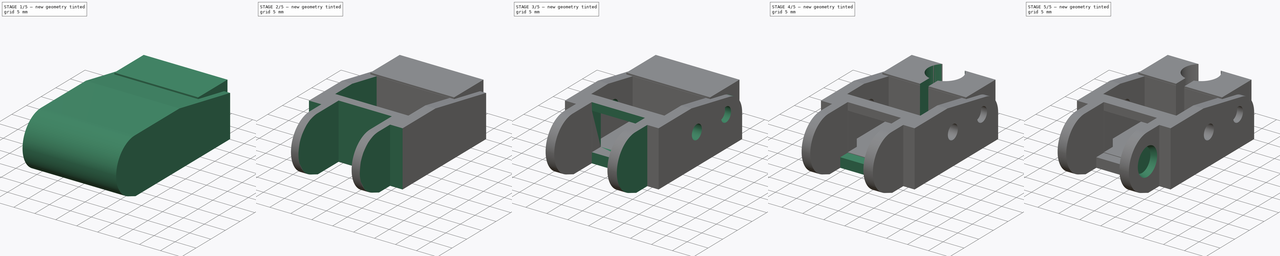
[diagram: build sequence overview — one tinted view per stage of 5, left to right]
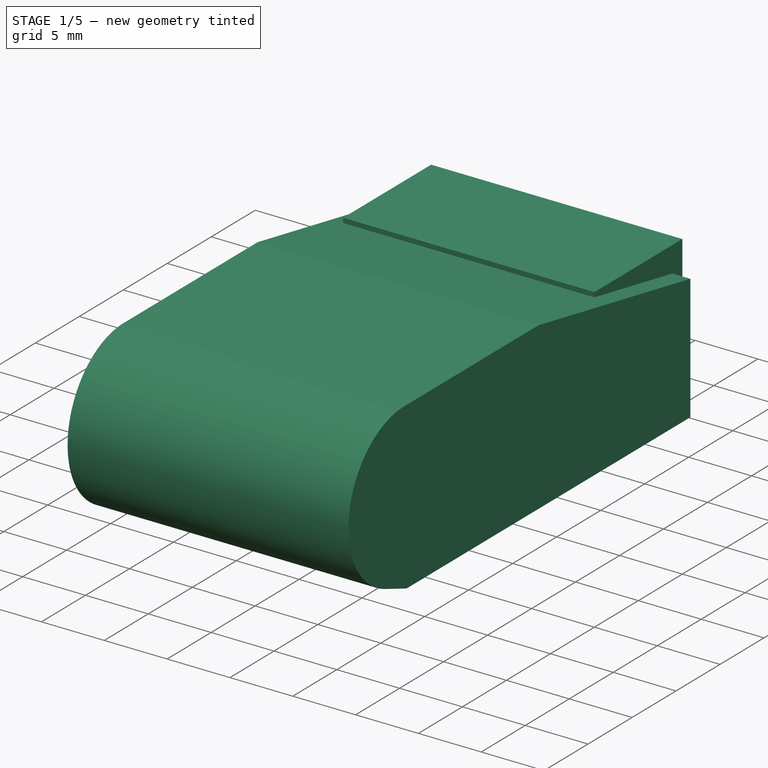
[diagram: stage 1 of 5 — iso view after this stage's code; geometry added in this stage tinted green]
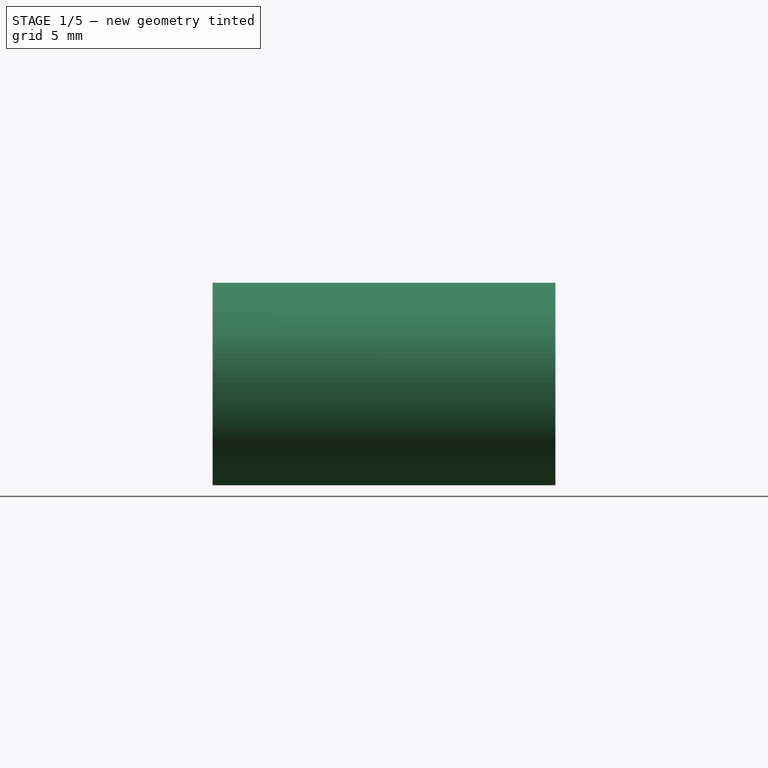
[diagram: stage 1 of 5 — front view after this stage's code; geometry added in this stage tinted green]
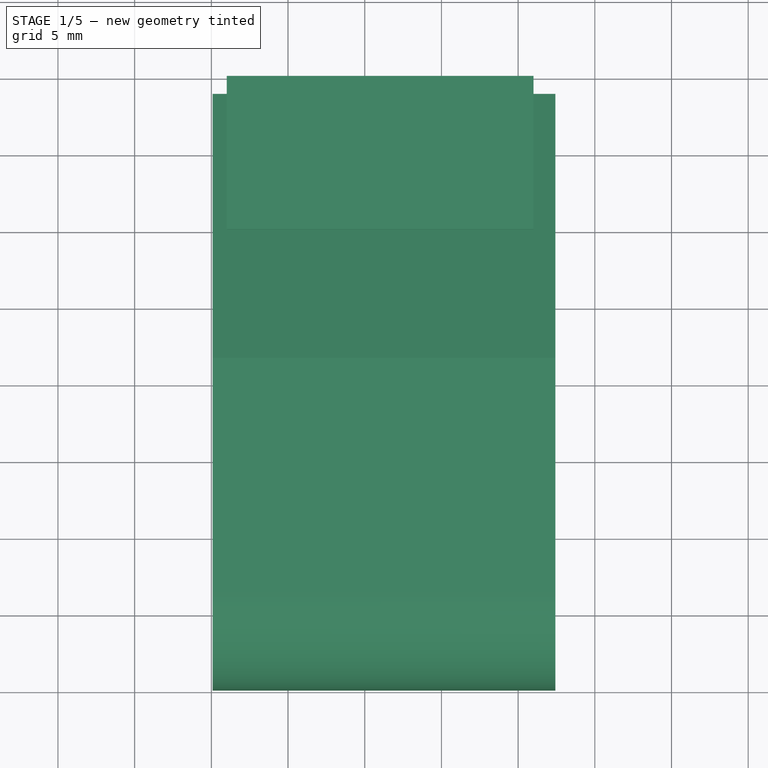
[diagram: stage 1 of 5 — top view after this stage's code; geometry added in this stage tinted green]
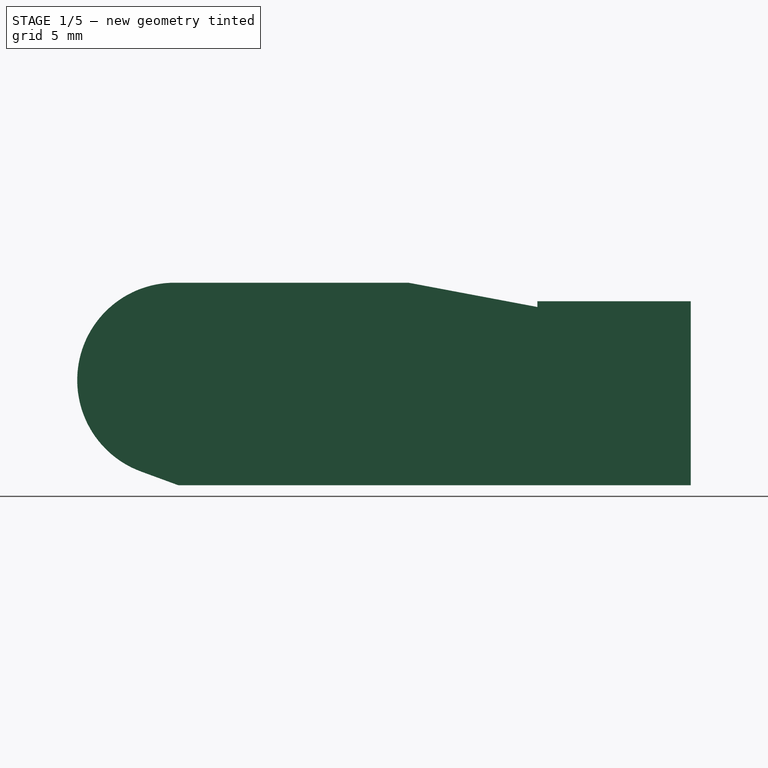
[diagram: stage 1 of 5 — right view after this stage's code; geometry added in this stage tinted green]
FCSTD DOCUMENT  (FreeCAD 0.16R6712 (Git))
Label: endpiece
License: All rights reserved
LicenseURL: http://en.wikipedia.org/wiki/All_rights_reserved
objects: Sketcher::SketchObject×10, PartDesign::Pocket×6, PartDesign::Pad×3, Part::Cone×2, Part::Cut×2, Part::Feature×1, PartDesign::Fillet×1, Part::Fuse×1
note: 35 computed .brp shape members not serialized (recipe doc carries the construction recipe); baked Part::Feature solids carry a one-line shape summary decoded from their .brp

FEATURE [Part::Feature] endpiece001
  shape: bbox 22.73 x 40.31 x 13.58 mm, 1610 faces, 0 solids (baked)
FEATURE [Sketcher::SketchObject] Sketch
  Placement = pos=(22.432,0,0) rot=(0.57735,0.57735,0.57735;2.0944rad)
  Support = -> endpiece001 [Face181]
  sketch-geometry (6):
    g0: ArcOfCircle CenterX=6.35 CenterY=6.858 CenterZ=0 NormalX=0 NormalY=0 NormalZ=1 Radius=6.35 StartAngle=1.5708 EndAngle=4.36042
    g1: LineSegment StartX=4.16084 StartY=0.89729 StartZ=0 EndX=6.604 EndY=0 EndZ=0
    g2: LineSegment StartX=6.604 StartY=0 StartZ=0 EndX=38.862 EndY=0 EndZ=0
    g3: LineSegment StartX=38.862 StartY=0 StartZ=0 EndX=38.862 EndY=9.95494 EndZ=0
    g4: LineSegment StartX=38.862 StartY=9.95494 StartZ=0 EndX=21.59 EndY=13.208 EndZ=0
    g5: LineSegment StartX=21.59 StartY=13.208 StartZ=0 EndX=6.35 EndY=13.208 EndZ=0
  constraints (20):
    c: PointOnObject(g1,g-1)
    c: Coincident(g1,g2)
    c: PointOnObject(g2,g-1)
    c: Coincident(g2,g3)
    c: Vertical(g3)
    c: Coincident(g3,g4)
    c: Coincident(g4,g5)
    c: Horizontal(g5)
    c: Coincident(g0,g5)
    c: Coincident(g0,g1)
    c: Coincident(g0,g5)
    c: Tangent(g5,g0)
    c: Tangent(g0,g1)
    c: DistanceY(g1,g0) = 13.208
    c: DistanceY(g-1,g0) = 6.858
    c: DistanceX(g-1,g2) = 38.862
    c: DistanceX(g-1,g1) = 6.604
    c: DistanceX(g-1,g0) = 6.35
    c: DistanceX(g0,g4) = 15.24
    c: Angle(g4,g2) = 0.186162
FEATURE [PartDesign::Pad] Pad
  Length = 22.352
  Length2 = 100
  Reversed = true
  Sketch = -> Sketch
  Type = 0
FEATURE [Sketcher::SketchObject] Sketch006
  Placement = pos=(0,0,12) rot=(0,0,1;0rad)
  Support = -> endpiece001 [Face1547]
  sketch-geometry (4):
    g0: LineSegment StartX=1.00168 StartY=30.0003 StartZ=0 EndX=20.9988 EndY=30.0003 EndZ=0
    g1: LineSegment StartX=20.9988 StartY=30.0003 StartZ=0 EndX=20.9988 EndY=39.9977 EndZ=0
    g2: LineSegment StartX=20.9988 StartY=39.9977 StartZ=0 EndX=1.00168 EndY=39.9977 EndZ=0
    g3: LineSegment StartX=1.00168 StartY=39.9977 StartZ=0 EndX=1.00168 EndY=30.0003 EndZ=0
  constraints (8):
    c: Coincident(g0,g1)
    c: Coincident(g1,g2)
    c: Coincident(g2,g3)
    c: Coincident(g3,g0)
    c: Horizontal(g0)
    c: Horizontal(g2)
    c: Vertical(g1)
    c: Vertical(g3)
FEATURE [PartDesign::Pad] Pad001
  Length = 12
  Length2 = 100
  Reversed = true
  Sketch = -> Sketch006
  Type = 0
FEATURE [Part::Cone] Cone
  Angle = 360
  Height = 1.27
  Placement = pos=(3.99232,6.35,6.858) rot=(0,-1,0;1.5708rad)
  Radius1 = 2.794
  Radius2 = 3.302
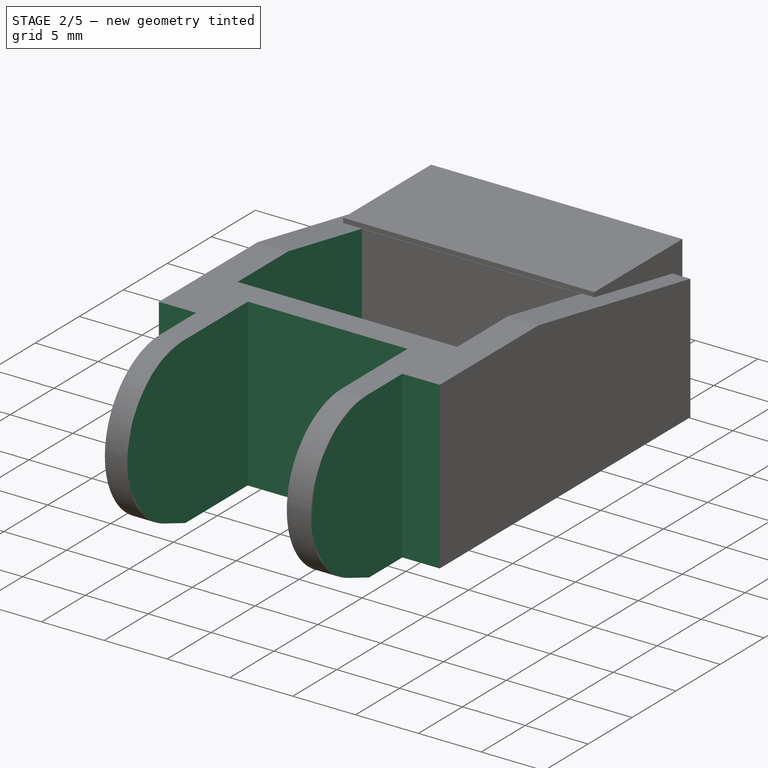
[diagram: stage 2 of 5 — iso view after this stage's code; geometry added in this stage tinted green]
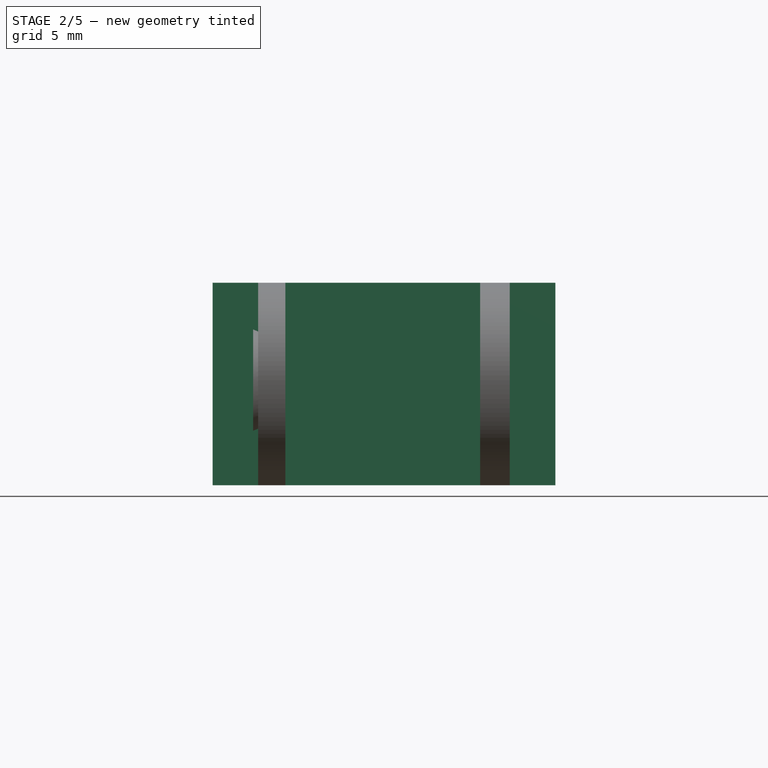
[diagram: stage 2 of 5 — front view after this stage's code; geometry added in this stage tinted green]
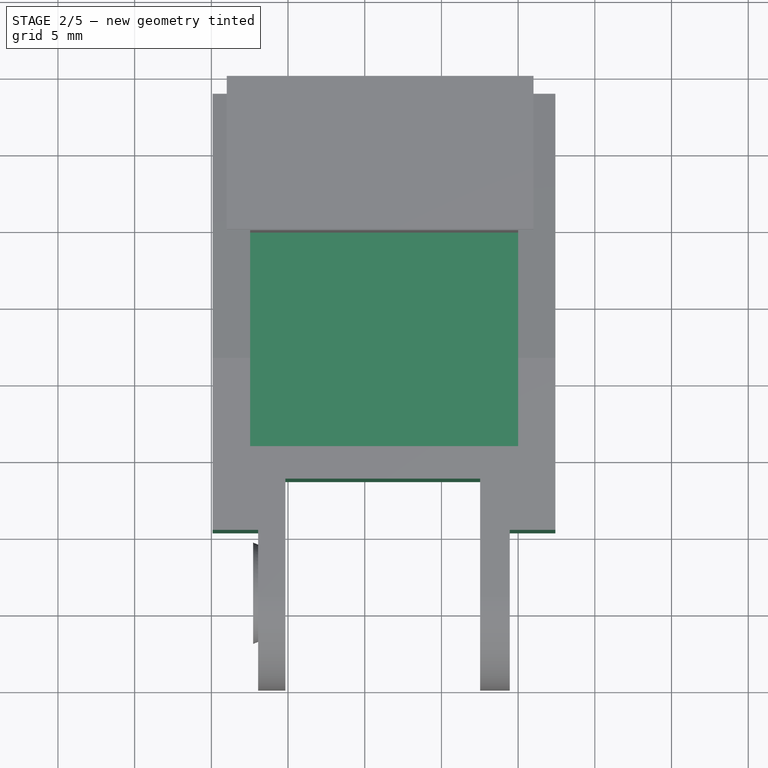
[diagram: stage 2 of 5 — top view after this stage's code; geometry added in this stage tinted green]
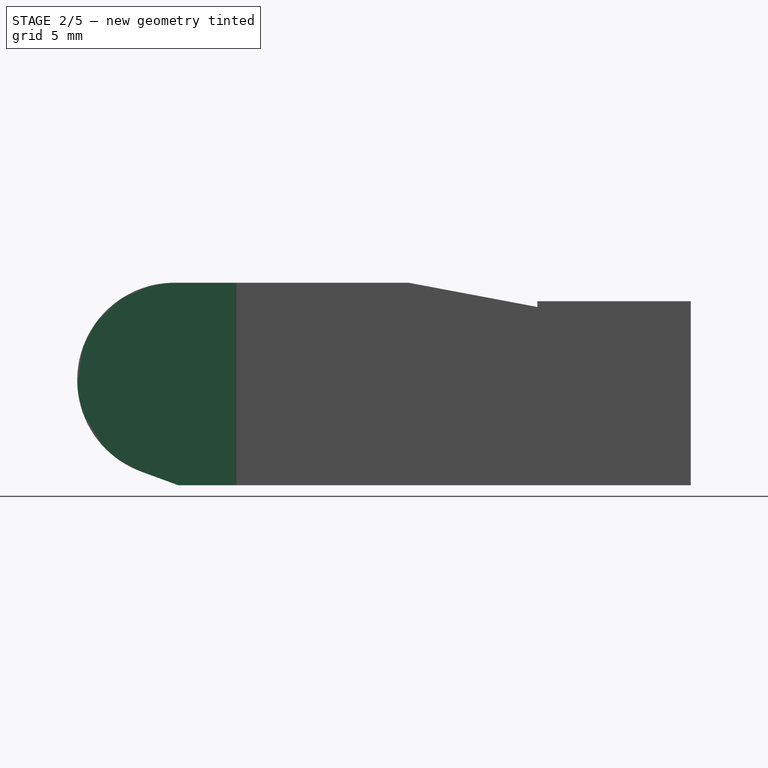
[diagram: stage 2 of 5 — right view after this stage's code; geometry added in this stage tinted green]
FEATURE [Sketcher::SketchObject] Sketch001
  Placement = pos=(0,0,13.208) rot=(0,0,1;0rad)
  Support = -> Pad [Face6]
  sketch-geometry (5):
    g0: LineSegment StartX=4.826 StartY=13.716 StartZ=0 EndX=17.526 EndY=13.716 EndZ=0
    g1: LineSegment StartX=17.526 StartY=13.716 StartZ=0 EndX=17.526 EndY=0 EndZ=0
    g2: LineSegment StartX=17.526 StartY=0 StartZ=0 EndX=4.826 EndY=0 EndZ=0
    g3: LineSegment StartX=4.826 StartY=0 StartZ=0 EndX=4.826 EndY=13.716 EndZ=0
    g4: LineSegment [constr] StartX=11.176 StartY=-10.5284 StartZ=0 EndX=11.176 EndY=-10.5457 EndZ=0
  constraints (14):
    c: Coincident(g0,g1)
    c: Coincident(g1,g2)
    c: Coincident(g2,g3)
    c: Coincident(g3,g0)
    c: Horizontal(g0)
    c: Horizontal(g2)
    c: Vertical(g1)
    c: Vertical(g3)
    c: DistanceX(g2,g1) = 12.7
    c: Vertical(g4)
    c: Symmetric(g2,g1,g4)
    c: DistanceX(g-1,g4) = 11.176
    c: DistanceY(g2,g0) = 13.716
    c: DistanceY(g2,g-1) = 0
FEATURE [PartDesign::Pocket] Pocket
  Length = 4.99999
  Sketch = -> Sketch001
  Type = 1
FEATURE [Sketcher::SketchObject] Sketch002
  Placement = pos=(0,0,13.208) rot=(0,0,1;0rad)
  Support = -> Pocket [Face5]
  sketch-geometry (9):
    g0: LineSegment StartX=3.048 StartY=10.3735 StartZ=0 EndX=0 EndY=10.3735 EndZ=0
    g1: LineSegment StartX=0 StartY=10.3735 StartZ=0 EndX=0 EndY=0 EndZ=0
    g2: LineSegment StartX=0 StartY=0 StartZ=0 EndX=3.048 EndY=0 EndZ=0
    g3: LineSegment StartX=3.048 StartY=0 StartZ=0 EndX=3.048 EndY=10.3735 EndZ=0
    g4: LineSegment StartX=19.4564 StartY=10.3735 StartZ=0 EndX=22.5044 EndY=10.3735 EndZ=0
    g5: LineSegment StartX=22.5044 StartY=10.3735 StartZ=0 EndX=22.5044 EndY=0 EndZ=0
    g6: LineSegment StartX=22.5044 StartY=0 StartZ=0 EndX=19.4564 EndY=0 EndZ=0
    g7: LineSegment StartX=19.4564 StartY=0 StartZ=0 EndX=19.4564 EndY=10.3735 EndZ=0
    g8: LineSegment [constr] StartX=11.2522 StartY=8.58355 StartZ=0 EndX=11.2522 EndY=-4.54656 EndZ=0
  constraints (23):
    c: Coincident(g0,g1)
    c: Coincident(g1,g2)
    c: Coincident(g2,g3)
    c: Coincident(g3,g0)
    c: Horizontal(g0)
    c: Horizontal(g2)
    c: Vertical(g1)
    c: Vertical(g3)
    c: Coincident(g4,g5)
    c: Coincident(g5,g6)
    c: Coincident(g6,g7)
    c: Coincident(g7,g4)
    c: Horizontal(g4)
    c: Horizontal(g6)
    c: Vertical(g5)
    c: Vertical(g7)
    c: DistanceY(g4,g0) = 0
    c: Coincident(g1,g-1)
    c: Vertical(g8)
    c: DistanceX(g-1,g8) = 11.2522
    c: Symmetric(g2,g6,g8)
    c: Symmetric(g-1,g5,g8)
    c: DistanceX(g-1,g2) = 3.048
FEATURE [PartDesign::Pocket] Pocket001
  Length = 4.99999
  Sketch = -> Sketch002
  Type = 1
FEATURE [Sketcher::SketchObject] Sketch003
  Placement = pos=(0,0,13.208) rot=(0,0,1;0rad)
  Support = -> Pocket001 [Face5]
  sketch-geometry (4):
    g0: LineSegment StartX=2.52827 StartY=15.8337 StartZ=0 EndX=19.9988 EndY=15.8337 EndZ=0
    g1: LineSegment StartX=19.9988 StartY=15.8337 StartZ=0 EndX=19.9988 EndY=29.9445 EndZ=0
    g2: LineSegment StartX=19.9988 StartY=29.9445 StartZ=0 EndX=2.52827 EndY=29.9445 EndZ=0
    g3: LineSegment StartX=2.52827 StartY=29.9445 StartZ=0 EndX=2.52827 EndY=15.8337 EndZ=0
  constraints (8):
    c: Coincident(g0,g1)
    c: Coincident(g1,g2)
    c: Coincident(g2,g3)
    c: Coincident(g3,g0)
    c: Horizontal(g0)
    c: Horizontal(g2)
    c: Vertical(g1)
    c: Vertical(g3)
FEATURE [PartDesign::Pocket] Pocket002
  Length = 10.8887
  Sketch = -> Sketch003
  Type = 0
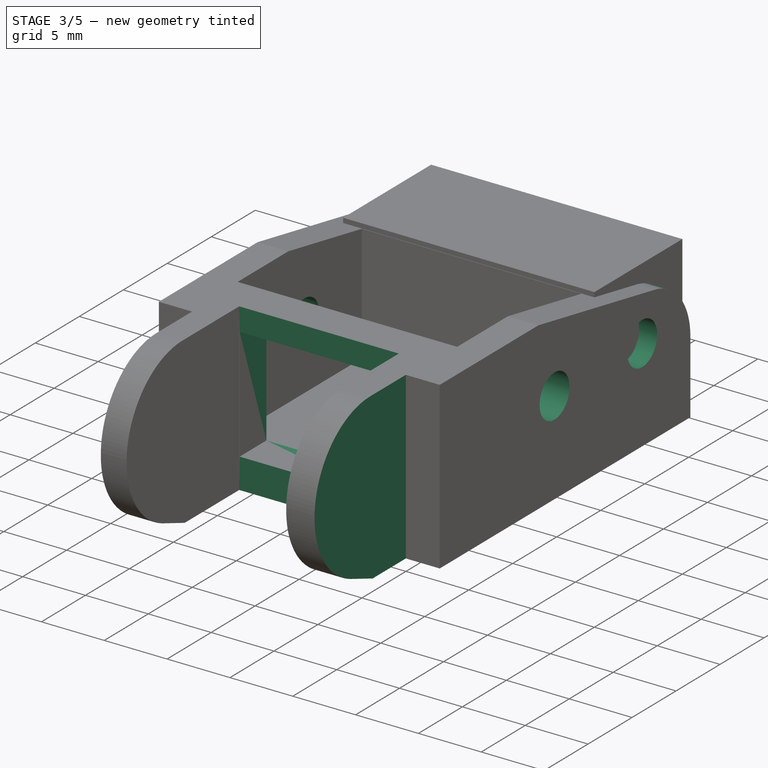
[diagram: stage 3 of 5 — iso view after this stage's code; geometry added in this stage tinted green]
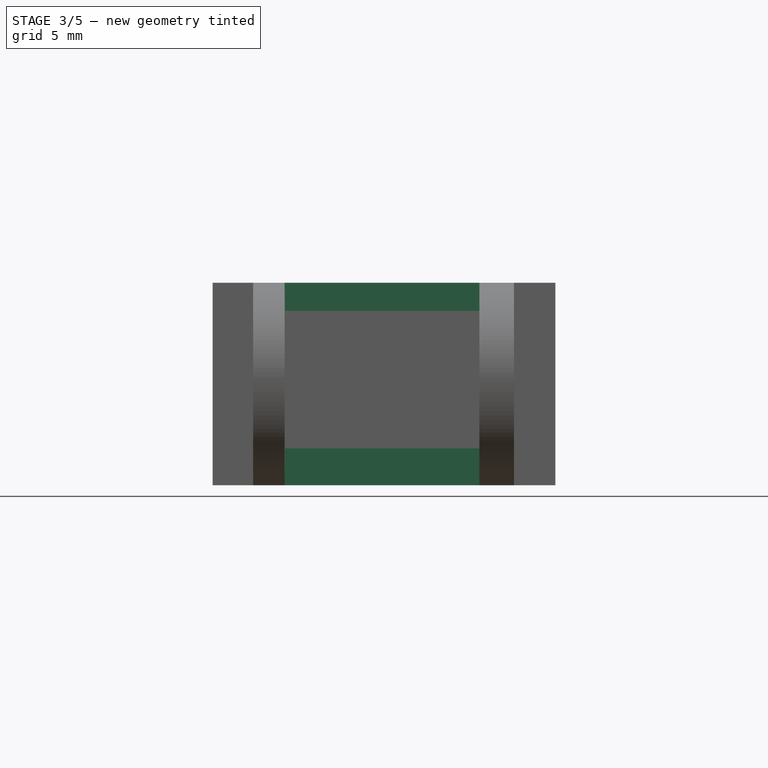
[diagram: stage 3 of 5 — front view after this stage's code; geometry added in this stage tinted green]
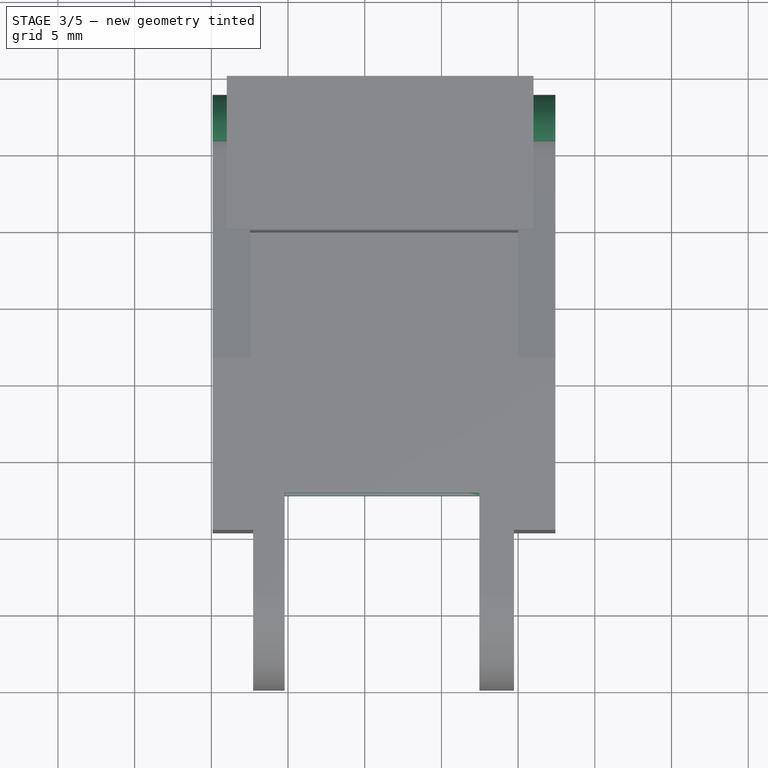
[diagram: stage 3 of 5 — top view after this stage's code; geometry added in this stage tinted green]
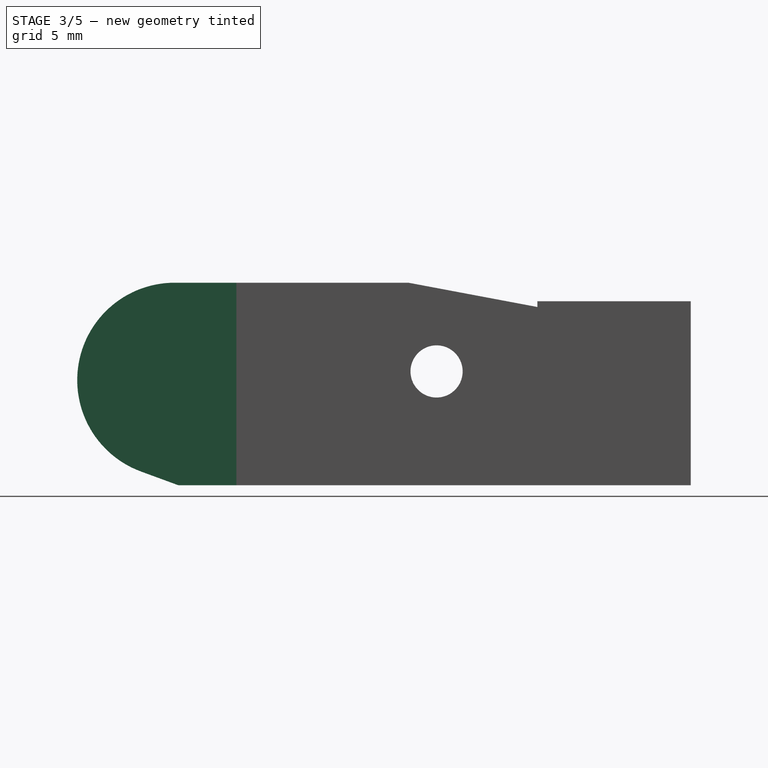
[diagram: stage 3 of 5 — right view after this stage's code; geometry added in this stage tinted green]
FEATURE [Sketcher::SketchObject] Sketch004
  Placement = pos=(0,10.3735,0) rot=(1,0,0;1.5708rad)
  Support = -> Pocket002 [Face13]
  sketch-geometry (4):
    g0: LineSegment StartX=4.80862 StartY=11.3809 StartZ=0 EndX=17.657 EndY=11.3809 EndZ=0
    g1: LineSegment StartX=17.657 StartY=11.3809 StartZ=0 EndX=17.657 EndY=2.40688 EndZ=0
    g2: LineSegment StartX=17.657 StartY=2.40688 StartZ=0 EndX=4.80862 EndY=2.40688 EndZ=0
    g3: LineSegment StartX=4.80862 StartY=2.40688 StartZ=0 EndX=4.80862 EndY=11.3809 EndZ=0
  constraints (8):
    c: Coincident(g0,g1)
    c: Coincident(g1,g2)
    c: Coincident(g2,g3)
    c: Coincident(g3,g0)
    c: Horizontal(g0)
    c: Horizontal(g2)
    c: Vertical(g1)
    c: Vertical(g3)
FEATURE [PartDesign::Pocket] Pocket003
  Length = 4.99999
  Sketch = -> Sketch004
  Type = 0
FEATURE [Sketcher::SketchObject] Sketch005
  Placement = pos=(0,10.3735,0) rot=(0,0.707107,0.707107;3.14159rad)
  Support = -> Pocket003 [Face10]
  sketch-geometry (2):
    g0: Circle CenterX=23.4268 CenterY=7.42329 CenterZ=0 NormalX=0 NormalY=0 NormalZ=1 Radius=1.7
    g1: Circle CenterX=33.3836 CenterY=7.39678 CenterZ=0 NormalX=0 NormalY=0 NormalZ=1 Radius=1.7
  constraints (2):
    c: Radius(g0) = 1.7
    c: Equal(g0,g1)
FEATURE [PartDesign::Pocket] Pocket004
  Length = 4.99999
  Sketch = -> Sketch005
  Type = 1
FEATURE [PartDesign::Fillet] Fillet
  Base = -> Pocket004 [Edge64]
  Radius = 5
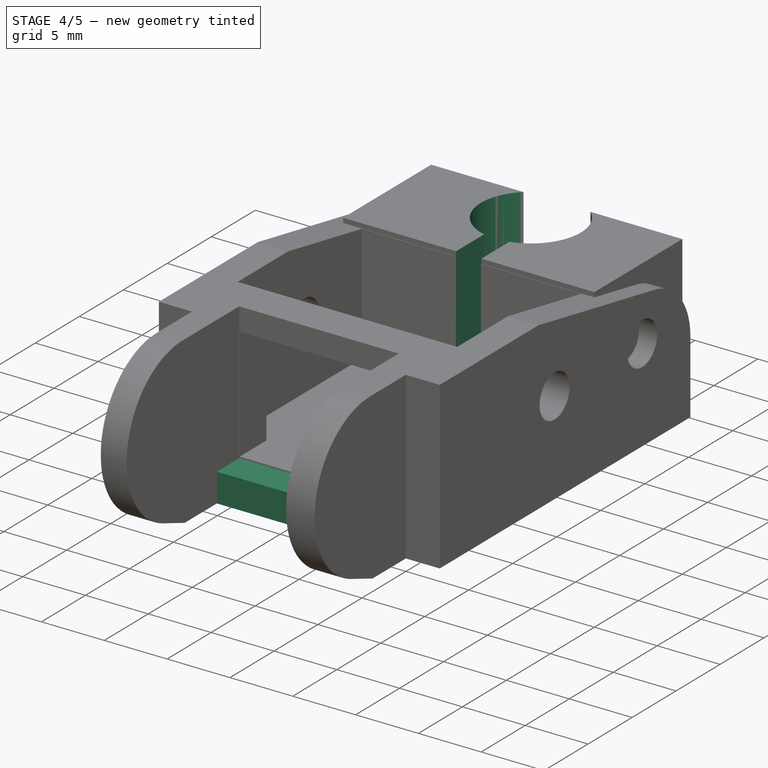
[diagram: stage 4 of 5 — iso view after this stage's code; geometry added in this stage tinted green]
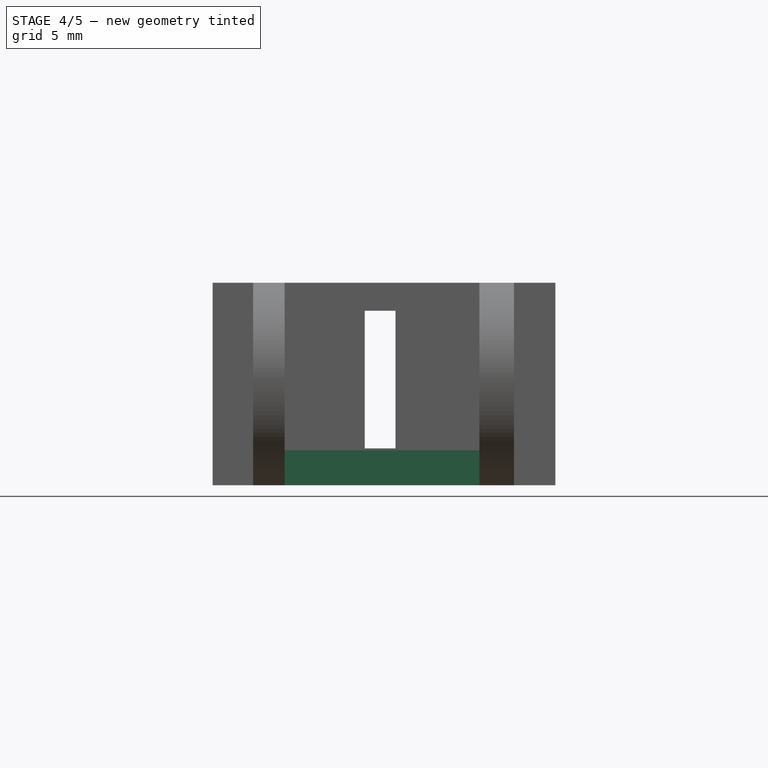
[diagram: stage 4 of 5 — front view after this stage's code; geometry added in this stage tinted green]
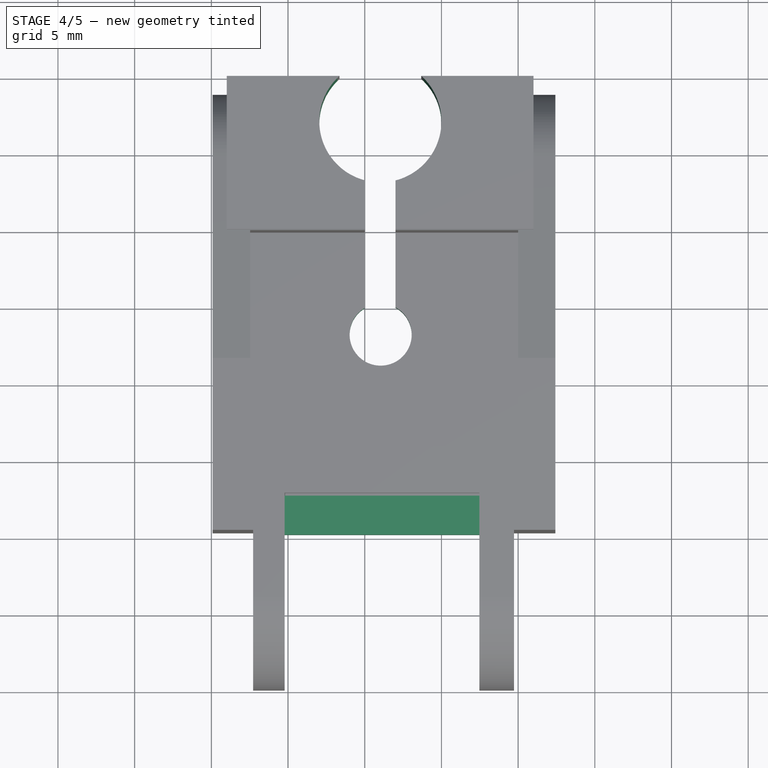
[diagram: stage 4 of 5 — top view after this stage's code; geometry added in this stage tinted green]
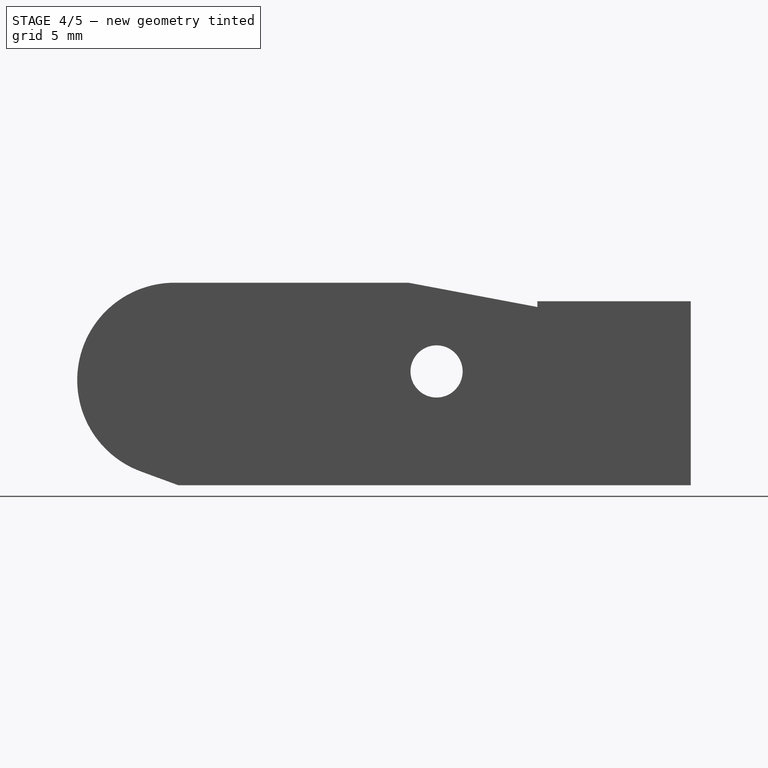
[diagram: stage 4 of 5 — right view after this stage's code; geometry added in this stage tinted green]
FEATURE [Sketcher::SketchObject] Sketch007
  Placement = pos=(0,0,12) rot=(0,0,1;0rad)
  Support = -> Pad001 [Face5]
  sketch-geometry (4):
    g0: ArcOfCircle CenterX=10.9916 CenterY=36.9355 CenterZ=0 NormalX=0 NormalY=0 NormalZ=1 Radius=3.92308 StartAngle=4.96555 EndAngle=10.7404
    g1: ArcOfCircle CenterX=10.9916 CenterY=23.2243 CenterZ=0 NormalX=0 NormalY=0 NormalZ=1 Radius=1.86351 StartAngle=2.131 EndAngle=7.29859
    g2: LineSegment StartX=10.0014 StartY=33.1394 StartZ=0 EndX=10.0014 EndY=24.803 EndZ=0
    g3: LineSegment StartX=11.9742 StartY=24.8078 StartZ=0 EndX=11.9742 EndY=33.1374 EndZ=0
  constraints (7):
    c: DistanceX(g0,g1) = 0
    c: Vertical(g2)
    c: Vertical(g3)
    c: Coincident(g0,g3)
    c: Coincident(g2,g0)
    c: Coincident(g2,g1)
    c: Coincident(g3,g1)
FEATURE [Part::Fuse] Fusion
  Base = -> Fillet
  Tool = -> Pad001
FEATURE [Sketcher::SketchObject] Sketch008
  Placement = pos=(0,0,12) rot=(0,0,1;0rad)
  Support = -> Fusion [Face1]
  sketch-geometry (4):
    g0: LineSegment StartX=12.0064 StartY=33.1802 StartZ=0 EndX=12.0064 EndY=25.0726 EndZ=0
    g1: LineSegment StartX=9.99861 StartY=25.0324 StartZ=0 EndX=9.99861 EndY=33.189 EndZ=0
    g2: ArcOfCircle CenterX=11.0194 CenterY=37.0379 CenterZ=0 NormalX=0 NormalY=0 NormalZ=1 Radius=3.98198 StartAngle=4.96287 EndAngle=10.7363
    g3: ArcOfCircle CenterX=11.0377 CenterY=23.296 CenterZ=0 NormalX=0 NormalY=0 NormalZ=1 Radius=2.02353 StartAngle=2.11007 EndAngle=7.35477
  constraints (6):
    c: Vertical(g0)
    c: Vertical(g1)
    c: Coincident(g3,g1)
    c: Coincident(g3,g0)
    c: Coincident(g1,g2)
    c: Coincident(g0,g2)
FEATURE [PartDesign::Pocket] Pocket005
  Length = 4.99999
  Sketch = -> Sketch008
  Type = 1
FEATURE [Sketcher::SketchObject] Sketch009
  Placement = pos=(0,12.7976,0) rot=(1,0,0;1.5708rad)
  Support = -> Pocket005 [Face31]
  sketch-geometry (4):
    g0: LineSegment StartX=4.7752 StartY=0 StartZ=0 EndX=17.4752 EndY=0 EndZ=0
    g1: LineSegment StartX=17.4752 StartY=0 StartZ=0 EndX=17.4752 EndY=2.286 EndZ=0
    g2: LineSegment StartX=17.4752 StartY=2.286 StartZ=0 EndX=4.7752 EndY=2.286 EndZ=0
    g3: LineSegment StartX=4.7752 StartY=2.286 StartZ=0 EndX=4.7752 EndY=0 EndZ=0
  constraints (12):
    c: Coincident(g0,g1)
    c: Coincident(g1,g2)
    c: Coincident(g2,g3)
    c: Coincident(g3,g0)
    c: Horizontal(g0)
    c: Horizontal(g2)
    c: Vertical(g1)
    c: Vertical(g3)
    c: PointOnObject(g0,g-1)
    c: DistanceX(g-1,g2) = 4.7752
    c: DistanceX(g0,g0) = 12.7
    c: DistanceY(g0,g1) = 2.286
FEATURE [PartDesign::Pad] Pad002
  Length = 2.54
  Length2 = 100
  Sketch = -> Sketch009
  Type = 0
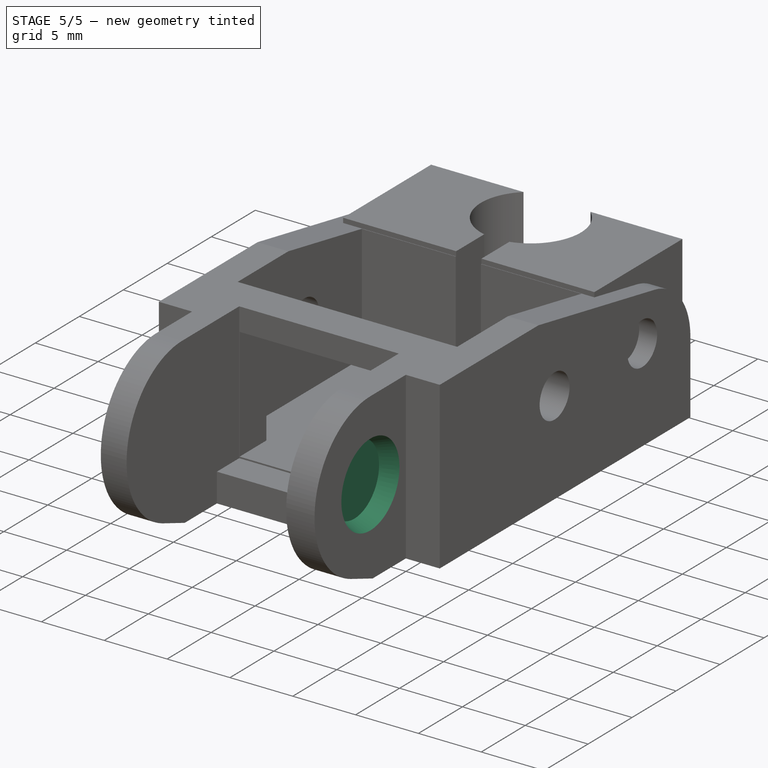
[diagram: stage 5 of 5 — iso view after this stage's code; geometry added in this stage tinted green]
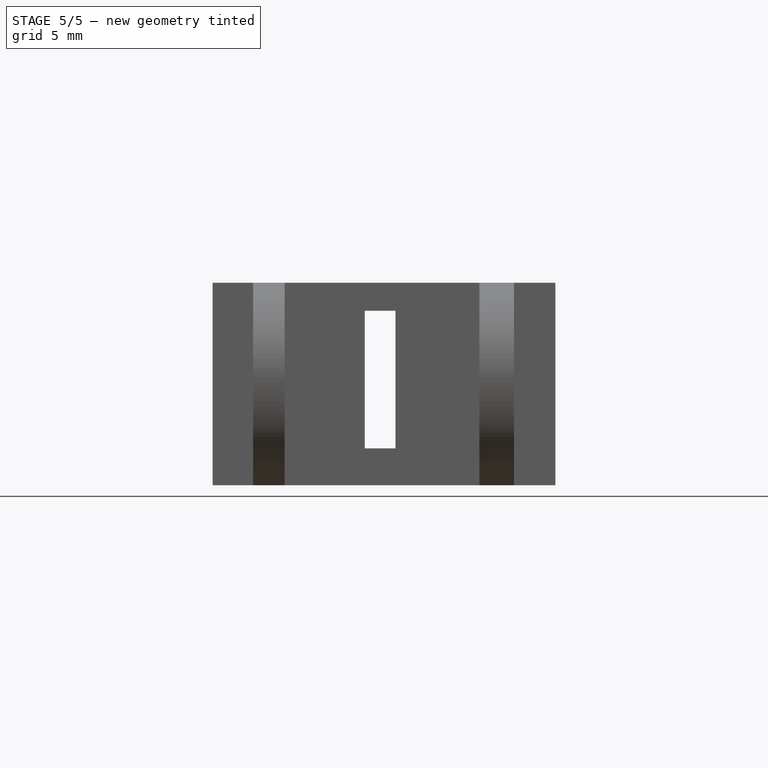
[diagram: stage 5 of 5 — front view after this stage's code; geometry added in this stage tinted green]
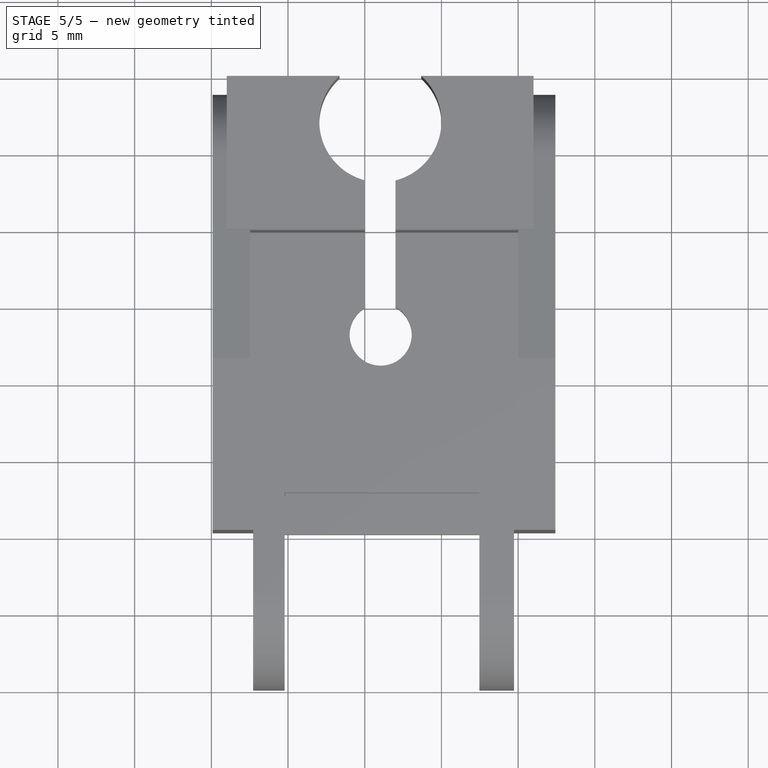
[diagram: stage 5 of 5 — top view after this stage's code; geometry added in this stage tinted green]
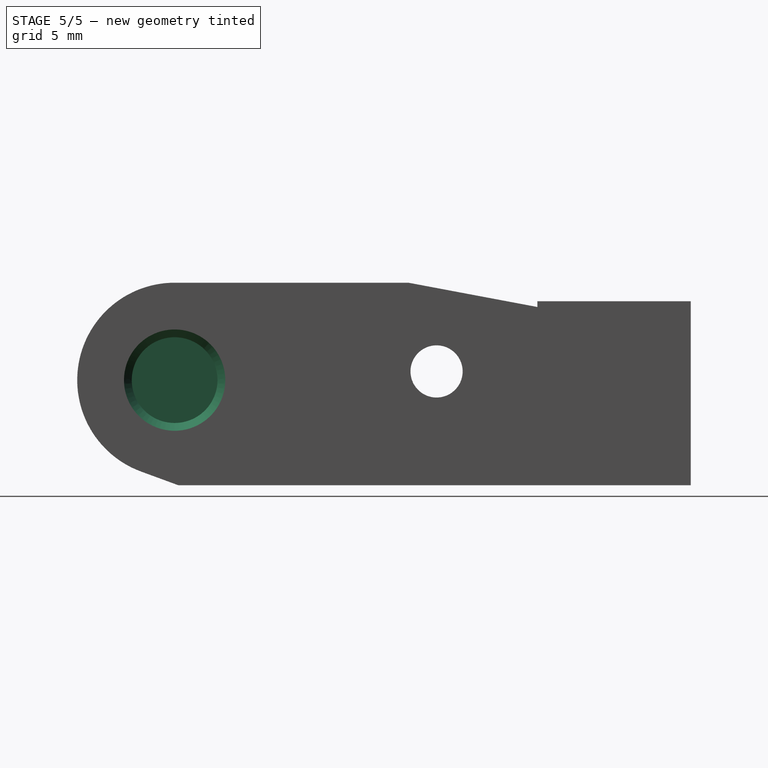
[diagram: stage 5 of 5 — right view after this stage's code; geometry added in this stage tinted green]
FEATURE [Part::Cone] Cone001
  Angle = 360
  Height = 1.27
  Placement = pos=(18.4628,6.35,6.858) rot=(0,1,0;1.5708rad)
  Radius1 = 2.794
  Radius2 = 3.302
FEATURE [Part::Cut] Cut
  Base = -> Pad002
  Tool = -> Cone
FEATURE [Part::Cut] Cut001
  Base = -> Cut
  Tool = -> Cone001
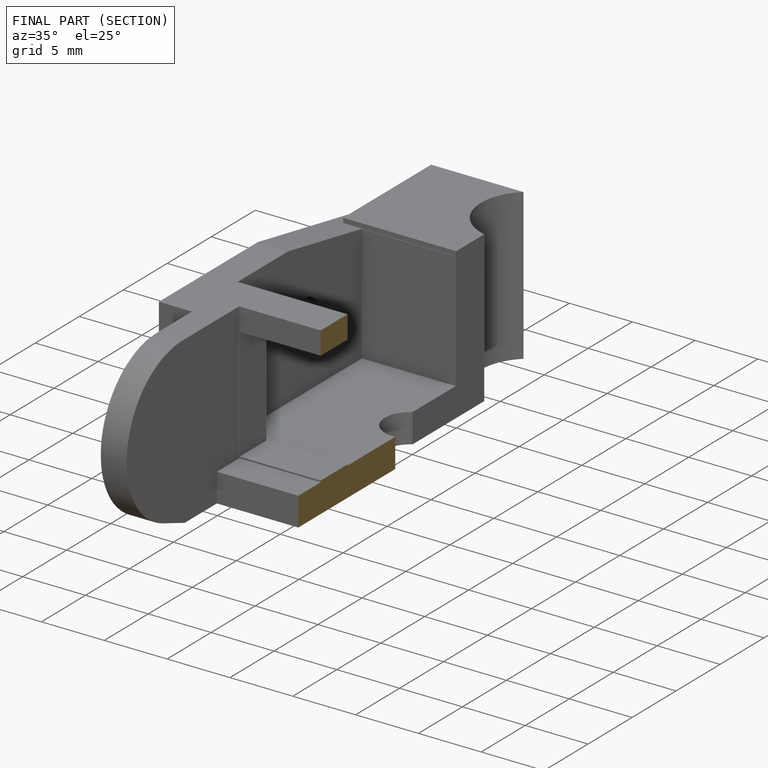
[diagram: finished part — half-section view (interior)]
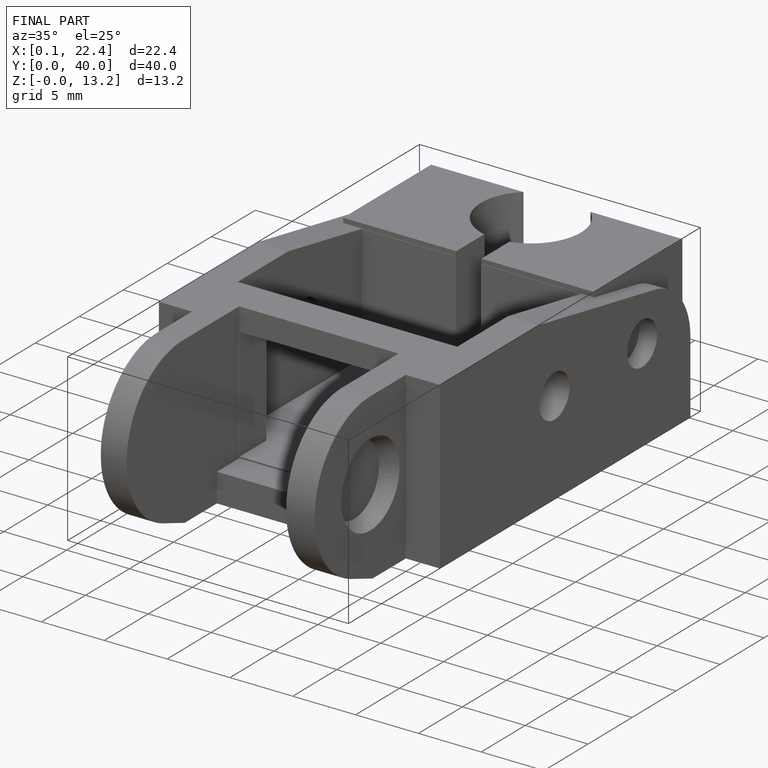
[diagram: finished part — iso view with bounding-box wireframe]
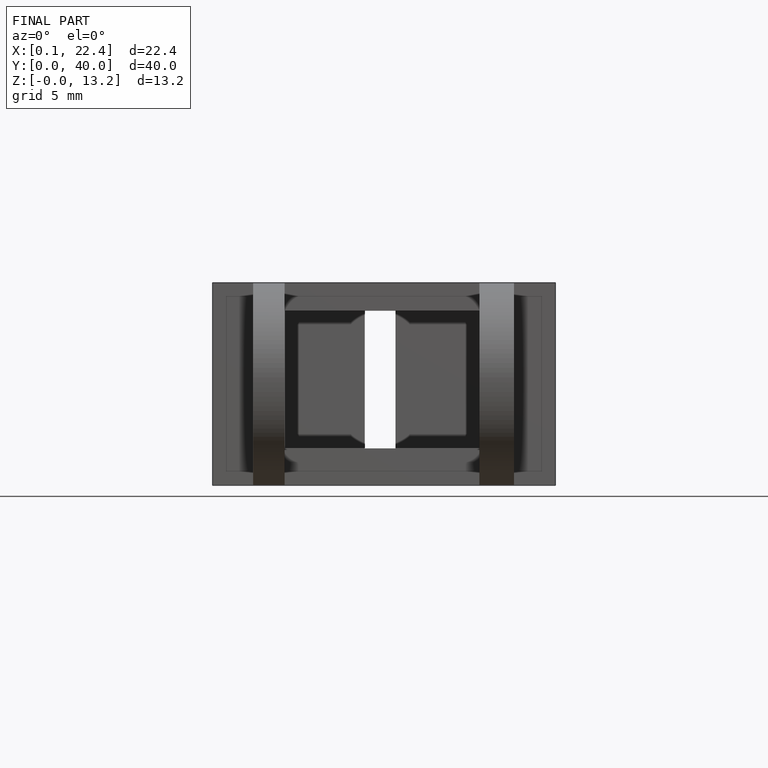
[diagram: finished part — front view with bounding-box wireframe]
